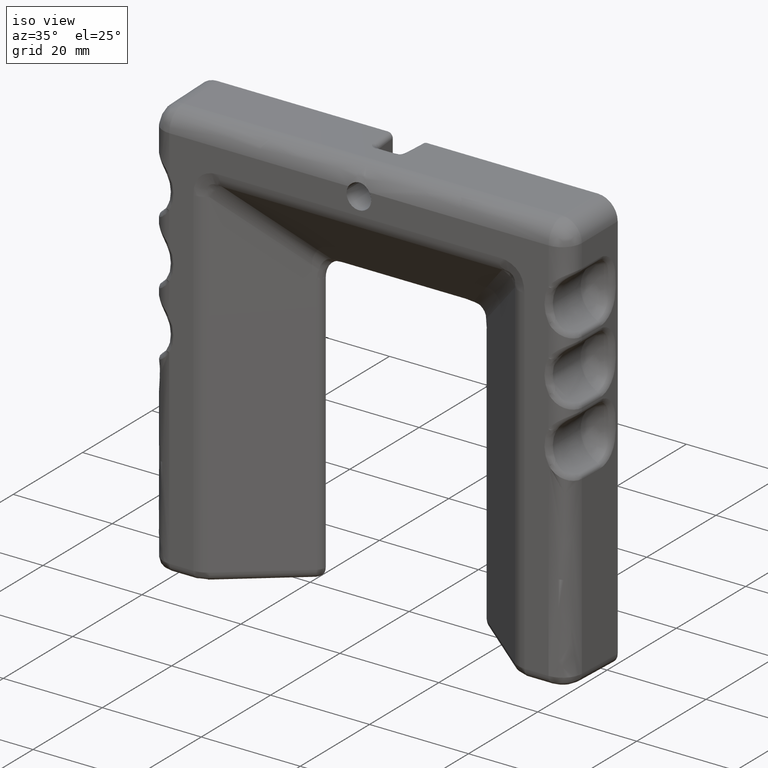
[diagram: clean part render]
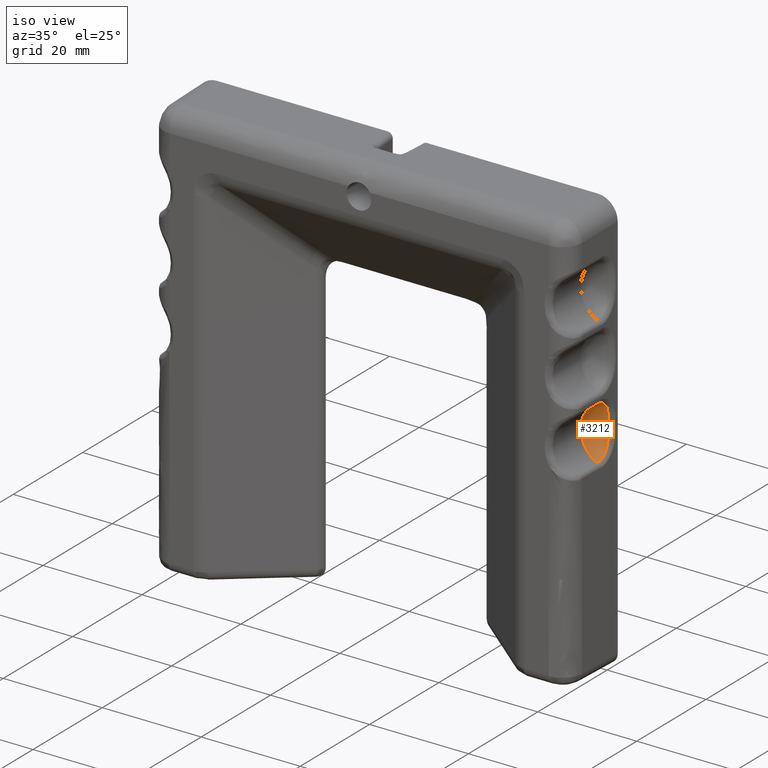
[diagram: same view with one face highlighted and labeled with its STEP entity id]
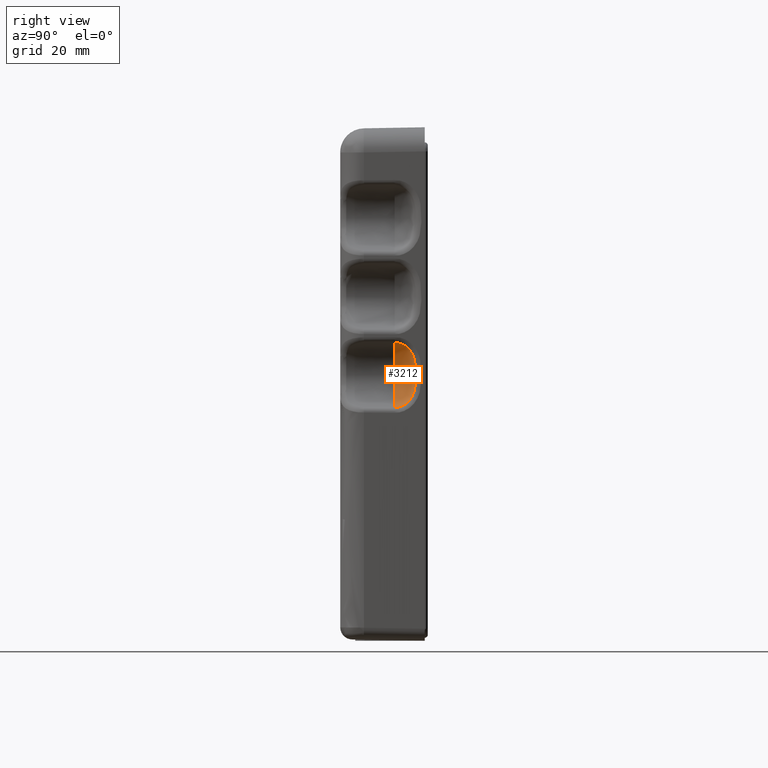
[diagram: same view with one face highlighted and labeled with its STEP entity id]
A machine part, iso view. The second image highlights one B-rep face of the part: STEP entity #3212.
A second angle (right view) of the same face is appended — the face is thin or edge-on in the first view.
In plain terms, the highlighted face is a freeform B-spline surface patch.
Its self-contained STEP definition (entity closure, byte-faithful):
#3077=CARTESIAN_POINT('',(42.383865717606064,-5.769605998660386,-20.603328608470832));
#3078=CARTESIAN_POINT('',(38.510401876990215,-5.769605998660386,-19.140489250304242));
#3079=CARTESIAN_POINT('',(38.510399362988288,-5.769605998660385,-15.000003637196334));
#3080=CARTESIAN_POINT('',(38.510396848986368,-5.769605998660386,-10.859518024088443));
#3081=CARTESIAN_POINT('',(42.383858913198537,-5.769605998660386,-9.396673962177292));
#3082=CARTESIAN_POINT('',(42.339840137397047,-4.156711695016975,-20.719904288534217));
#3083=CARTESIAN_POINT('',(38.385789968009611,-4.156711695016975,-19.226630967819393));
#3084=CARTESIAN_POINT('',(38.385787401704576,-4.156711695016973,-15.000003712857678));
#3085=CARTESIAN_POINT('',(38.385784835399541,-4.156711695016975,-10.773376457895985));
#3086=CARTESIAN_POINT('',(42.339833191425747,-4.156711695016975,-9.280098335576511));
#3087=CARTESIAN_POINT('',(42.745349480219140,-3.016722077959825,-19.646152910650940));
#3088=CARTESIAN_POINT('',(39.533561174627046,-3.016722077959824,-18.433199715050101));
#3089=CARTESIAN_POINT('',(39.533559090073709,-3.016722077959825,-15.000003015958690));
#3090=CARTESIAN_POINT('',(39.533557005520365,-3.016722077959824,-11.566806316867293));
#3091=CARTESIAN_POINT('',(42.745343838158867,-3.016722077959825,-10.353849221028222));
#3092=CARTESIAN_POINT('',(43.076702729876530,-2.085204047922024,-18.768760035040152));
#3093=CARTESIAN_POINT('',(40.471437763435304,-2.085204047922024,-17.784864408753158));
#3094=CARTESIAN_POINT('',(40.471436072535006,-2.085204047922024,-15.000002446502656));
#3095=CARTESIAN_POINT('',(40.471434381634708,-2.085204047922024,-12.215140484252146));
#3096=CARTESIAN_POINT('',(43.076698153279132,-2.085204047922024,-11.231241694259126));
#3097=CARTESIAN_POINT('',(43.542887261723713,-2.006248975286401,-17.534346346972789));
#3098=CARTESIAN_POINT('',(41.790946652924447,-2.006248975286401,-16.872714334599490));
#3099=CARTESIAN_POINT('',(41.790945515858944,-2.006248975286401,-15.000001645328688));
#3100=CARTESIAN_POINT('',(41.790944378793448,-2.006248975286401,-13.127288956057896));
#3101=CARTESIAN_POINT('',(43.542884184137776,-2.006248975286401,-12.465654816213817));
#3109=(BOUNDED_SURFACE()B_SPLINE_SURFACE(2,2,((#3077,#3082,#3087,#3092,#3097),(#3078,#3083,#3088,#3093,#3098),(#3079,#3084,#3089,#3094,#3099),(#3080,#3085,#3090,#3095,#3100),(#3081,#3086,#3091,#3096,#3101)),.UNSPECIFIED.,.F.,.F.,.U.)B_SPLINE_SURFACE_WITH_KNOTS((3,2,3),(3,2,3),(0.0,7.468353669605336,14.936707339210670),(0.0,3.179934696401773,5.857343154173170),.UNSPECIFIED.)GEOMETRIC_REPRESENTATION_ITEM()RATIONAL_B_SPLINE_SURFACE(((0.762410073536187,0.749055761551013,0.893152553776853,0.771827430125808,0.762121420233725),(0.663602727501095,0.651979116842124,0.777401153701776,0.671799607022555,0.663351483288217),(0.853616854491656,0.838664972051526,1.0,0.864160805298043,0.853293669721886),(0.663602727501095,0.651979116842124,0.777401153701776,0.671799607022555,0.663351483288217),(0.762410073536187,0.749055761551013,0.893152553776853,0.771827430125808,0.762121420233725)))REPRESENTATION_ITEM('')SURFACE());
#3110=CARTESIAN_POINT('',(41.853633440515097,-5.499999999999170,-20.384862490168999));
#3111=VERTEX_POINT('',#3110);
#3112=CARTESIAN_POINT('',(41.853633440515097,-5.499999999999170,-9.615137510744710));
#3113=VERTEX_POINT('',#3112);
#3114=CARTESIAN_POINT('',(41.853633440515097,-5.499999999999170,-20.384862490168999));
#3115=CARTESIAN_POINT('',(41.856569351711393,-5.347375671303568,-20.386305330580651));
#3116=CARTESIAN_POINT('',(41.859024413683933,-5.196618629893925,-20.376442997236229));
#3117=CARTESIAN_POINT('',(41.862997688050022,-4.898673531446640,-20.335109214873729));
#3118=CARTESIAN_POINT('',(41.864515959542182,-4.751486113054535,-20.303633915692942));
#3119=CARTESIAN_POINT('',(41.866030046214362,-4.533421366597588,-20.239970414603899));
#3120=CARTESIAN_POINT('',(41.866407412731043,-4.460893727636643,-20.215882158436589));
#3121=CARTESIAN_POINT('',(41.866880518835309,-4.318365354982764,-20.162654349979121));
#3122=CARTESIAN_POINT('',(41.866977233751939,-4.248468951288904,-20.133584178416431));
#3123=CARTESIAN_POINT('',(41.866836780512457,-4.042754523705871,-20.039235994454231));
#3124=CARTESIAN_POINT('',(41.866172463111887,-3.910894317286847,-19.966850762269068));
#3125=CARTESIAN_POINT('',(41.864214662906733,-3.720857893951046,-19.844350251033561));
#3126=CARTESIAN_POINT('',(41.863401000010853,-3.658809149491965,-19.801188378045630));
#3127=CARTESIAN_POINT('',(41.861422959134131,-3.537327397844351,-19.710168166490501));
#3128=CARTESIAN_POINT('',(41.860254001354228,-3.477760330559647,-19.662170465860001));
#3129=CARTESIAN_POINT('',(41.856233731526437,-3.305606399749621,-19.513322808685999));
#3130=CARTESIAN_POINT('',(41.852861798089059,-3.198698980300110,-19.407072222117019));
#3131=CARTESIAN_POINT('',(41.844571509555763,-2.999634989625869,-19.181411120002981));
#3132=CARTESIAN_POINT('',(41.839652421348731,-2.907487314660996,-19.061992660345570));
#3133=CARTESIAN_POINT('',(41.830938220789449,-2.780044870190207,-18.873256013656039));
#3134=CARTESIAN_POINT('',(41.827807964410752,-2.739374176071525,-18.808717208019981));
#3135=CARTESIAN_POINT('',(41.821162501278387,-2.662555891581766,-18.678192561341788));
#3136=CARTESIAN_POINT('',(41.817638039771502,-2.626262756343613,-18.612000223870108));
#3137=CARTESIAN_POINT('',(41.806447932985641,-2.523380387050287,-18.410790147307221));
#3138=CARTESIAN_POINT('',(41.798161071888742,-2.462783412253456,-18.273141742404789));
#3139=CARTESIAN_POINT('',(41.784496671664137,-2.382664333015873,-18.061945245074462));
#3140=CARTESIAN_POINT('',(41.779737102165129,-2.357755847679826,-17.990758236192619));
#3141=CARTESIAN_POINT('',(41.769826817260331,-2.311339748625379,-17.846893527967381));
#3142=CARTESIAN_POINT('',(41.764665234218192,-2.289795227856556,-17.774070752373230));
#3143=CARTESIAN_POINT('',(41.738124755890937,-2.190617277133866,-17.408554048476070));
#3144=CARTESIAN_POINT('',(41.714339108176787,-2.138448793728005,-17.111898043110969));
#3145=CARTESIAN_POINT('',(41.667969048308223,-2.067553095755560,-16.513035530176658));
#3146=CARTESIAN_POINT('',(41.645542176697070,-2.048657773909874,-16.210502747098008));
#3147=CARTESIAN_POINT('',(41.621350022202208,-2.031871531483812,-15.756652632848439));
#3148=CARTESIAN_POINT('',(41.614868570332099,-2.028236018583074,-15.605274509345440));
#3149=CARTESIAN_POINT('',(41.606090862842223,-2.023547544653718,-15.302323074545660));
#3150=CARTESIAN_POINT('',(41.603802714801283,-2.022491421098760,-15.150748661052660));
#3151=CARTESIAN_POINT('',(41.603821113281697,-2.022500344851212,-14.847404354195840));
#3152=CARTESIAN_POINT('',(41.606127565457300,-2.023565429488599,-14.695854897754479));
#3153=CARTESIAN_POINT('',(41.614934882739703,-2.028273177822975,-14.392998633360570));
#3154=CARTESIAN_POINT('',(41.621427572064867,-2.031919116240132,-14.241691593533460));
#3155=CARTESIAN_POINT('',(41.637566935707902,-2.043130272190540,-13.939317526413440));
#3156=CARTESIAN_POINT('',(41.647201285907208,-2.050701677320988,-13.788250185946810));
#3157=CARTESIAN_POINT('',(41.668268550677887,-2.071847170279844,-13.486361830346750));
#3158=CARTESIAN_POINT('',(41.679672611497423,-2.085422662608787,-13.335793106086401));
#3159=CARTESIAN_POINT('',(41.714443989397509,-2.138657770821630,-12.886790868099119));
#3160=CARTESIAN_POINT('',(41.738183325952697,-2.190856517110634,-12.590623722812030));
#3161=CARTESIAN_POINT('',(41.764627897009760,-2.289650621981502,-12.226447349950870));
#3162=CARTESIAN_POINT('',(41.769770381689121,-2.311088639662137,-12.153915192838550));
#3163=CARTESIAN_POINT('',(41.779718904266552,-2.357657499925159,-12.009516398310881));
#3164=CARTESIAN_POINT('',(41.784518876754987,-2.382778407365678,-11.937724297182800));
#3165=CARTESIAN_POINT('',(41.798227048834313,-2.463202696750825,-11.725812881677641));
#3166=CARTESIAN_POINT('',(41.806493232865172,-2.523801757340225,-11.588391779543040));
#3167=CARTESIAN_POINT('',(41.821315708277609,-2.660070535219584,-11.321874899882189));
#3168=CARTESIAN_POINT('',(41.827875691227099,-2.735728433658371,-11.192772719138629));
#3169=CARTESIAN_POINT('',(41.836523470406192,-2.861503558743428,-11.005918538768350));
#3170=CARTESIAN_POINT('',(41.839207617405847,-2.905479500989145,-10.944768601413470));
#3171=CARTESIAN_POINT('',(41.844193332484899,-2.997752991647542,-10.824861829961669));
#3172=CARTESIAN_POINT('',(41.846501917605202,-3.046221436537156,-10.765912674968501));
#3173=CARTESIAN_POINT('',(41.852823182949912,-3.197321176151936,-10.594230361441539));
#3174=CARTESIAN_POINT('',(41.856193800742247,-3.304439782747257,-10.487885878366880));
#3175=CARTESIAN_POINT('',(41.861517876235922,-3.531349798205685,-10.291299350990270));
#3176=CARTESIAN_POINT('',(41.863471023309337,-3.651137043243756,-10.201051997151550));
#3177=CARTESIAN_POINT('',(41.865460702757510,-3.840671024572300,-10.078204555802589));
#3178=CARTESIAN_POINT('',(41.865966468552472,-3.905495973329802,-10.039348727503119));
#3179=CARTESIAN_POINT('',(41.866674132819931,-4.038566536609282,-9.965985381088125));
#3180=CARTESIAN_POINT('',(41.866875322797931,-4.107090025376011,-9.931368577617317));
#3181=CARTESIAN_POINT('',(41.867032619768693,-4.314435708378786,-9.835947338122995));
#3182=CARTESIAN_POINT('',(41.866555300826803,-4.455805707391397,-9.783003998686153));
#3183=CARTESIAN_POINT('',(41.864576164389852,-4.744703501186449,-9.698044053111238));
#3184=CARTESIAN_POINT('',(41.863073926753643,-4.892230359865336,-9.666024278737444));
#3185=CARTESIAN_POINT('',(41.860073187013178,-5.118320391051742,-9.634304968983175));
#3186=CARTESIAN_POINT('',(41.858944708386289,-5.194623658535678,-9.626466802354054));
#3187=CARTESIAN_POINT('',(41.856461838762478,-5.347109000401079,-9.616540328204961));
#3188=CARTESIAN_POINT('',(41.855105265346587,-5.423486692257241,-9.614414189021478));
#3189=CARTESIAN_POINT('',(41.853633440515097,-5.499999999999170,-9.615137510744710));
#3190=B_SPLINE_CURVE_WITH_KNOTS('',3,(#3114,#3115,#3116,#3117,#3118,#3119,#3120,#3121,#3122,#3123,#3124,#3125,#3126,#3127,#3128,#3129,#3130,#3131,#3132,#3133,#3134,#3135,#3136,#3137,#3138,#3139,#3140,#3141,#3142,#3143,#3144,#3145,#3146,#3147,#3148,#3149,#3150,#3151,#3152,#3153,#3154,#3155,#3156,#3157,#3158,#3159,#3160,#3161,#3162,#3163,#3164,#3165,#3166,#3167,#3168,#3169,#3170,#3171,#3172,#3173,#3174,#3175,#3176,#3177,#3178,#3179,#3180,#3181,#3182,#3183,#3184,#3185,#3186,#3187,#3188,#3189),.UNSPECIFIED.,.F.,.U.,(4,2,2,2,2,2,2,2,2,2,2,2,2,2,2,2,2,2,2,2,2,2,2,2,2,2,2,2,2,2,2,2,2,2,2,2,2,4),(0.0,0.031250000000001,0.062500000000003,0.078125000000004,0.093750000000004,0.125000000000006,0.140625000000007,0.156250000000007,0.187500000000009,0.218750000000010,0.234375000000011,0.250000000000011,0.281250000000012,0.296875000000012,0.312500000000012,0.375000000000012,0.437500000000012,0.468750000000011,0.500000000000011,0.531250000000010,0.562500000000010,0.593750000000009,0.625000000000008,0.687500000000007,0.703125000000007,0.718750000000007,0.750000000000006,0.781250000000005,0.796875000000005,0.812500000000004,0.843750000000004,0.875000000000003,0.890625000000003,0.906250000000002,0.937500000000002,0.968750000000001,0.984375000000000,1.0),.UNSPECIFIED.);
#3191=EDGE_CURVE('',#3111,#3113,#3190,.T.);
#3192=ORIENTED_EDGE('',*,*,#3191,.T.);
#3193=CARTESIAN_POINT('',(41.853633440515097,-5.499999999999170,-20.384862490168999));
#3194=CARTESIAN_POINT('',(41.400518559117238,-5.499999999999169,-20.162356749098141));
#3195=CARTESIAN_POINT('',(40.756196741999432,-5.499999999999175,-19.737155735177069));
#3196=CARTESIAN_POINT('',(39.895824690946831,-5.499999999999147,-18.895454368807219));
#3197=CARTESIAN_POINT('',(39.242567463893479,-5.499999999999216,-17.984913721380511));
#3198=CARTESIAN_POINT('',(38.762307767991743,-5.499999999999100,-16.876889488592379));
#3199=CARTESIAN_POINT('',(38.509605023591760,-5.499999999999206,-15.733839136468751));
#3200=CARTESIAN_POINT('',(38.477107385381537,-5.499999999999159,-14.667228956671140));
#3201=CARTESIAN_POINT('',(38.652097120541463,-5.499999999999172,-13.492913479497309));
#3202=CARTESIAN_POINT('',(39.095046522827623,-5.499999999999172,-12.255249788204010));
#3203=CARTESIAN_POINT('',(39.858981304196803,-5.499999999999171,-11.118826115132940));
#3204=CARTESIAN_POINT('',(40.811989054581069,-5.499999999999166,-10.218587848237830));
#3205=CARTESIAN_POINT('',(41.478681307403697,-5.499999999999172,-9.799342084853818));
#3206=CARTESIAN_POINT('',(41.853633440515097,-5.499999999999170,-9.615137510744710));
#3207=B_SPLINE_CURVE_WITH_KNOTS('',3,(#3193,#3194,#3195,#3196,#3197,#3198,#3199,#3200,#3201,#3202,#3203,#3204,#3205,#3206),.UNSPECIFIED.,.F.,.U.,(4,1,1,1,1,1,1,1,1,1,1,4),(0.000000165205343,1.514347745916279,2.297662757228668,3.603159233298660,4.856444503023038,5.900859505972458,7.101826169299288,8.041808011991467,9.451748053636612,11.018355210380349,12.114971039991890,13.368230465778369),.UNSPECIFIED.);
#3208=EDGE_CURVE('',#3111,#3113,#3207,.T.);
#3209=ORIENTED_EDGE('',*,*,#3208,.F.);
#3210=EDGE_LOOP('',(#3192,#3209));
#3211=FACE_OUTER_BOUND('',#3210,.T.);
#3212=ADVANCED_FACE('',(#3211),#3109,.F.);